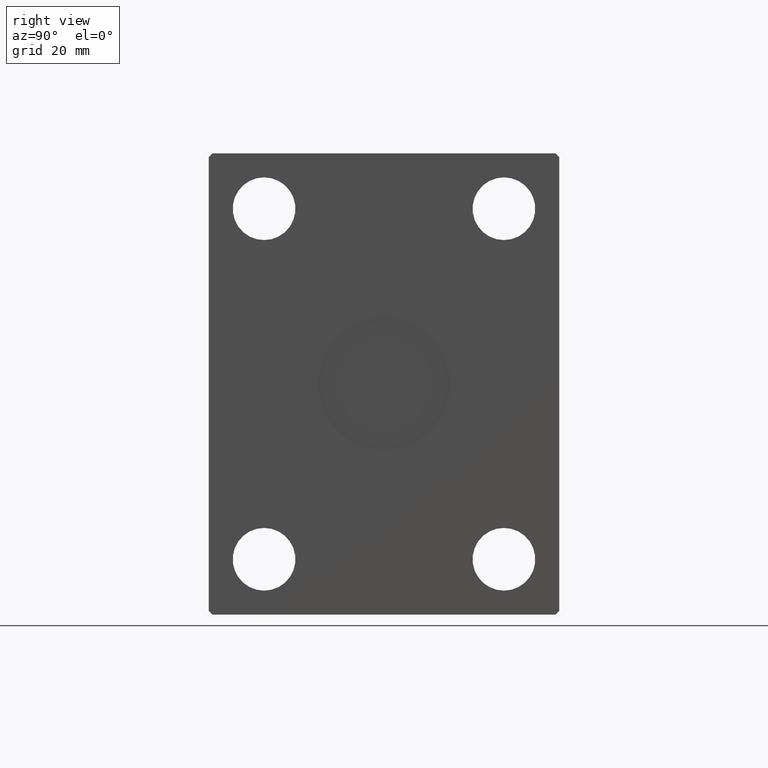
[diagram: clean part render]
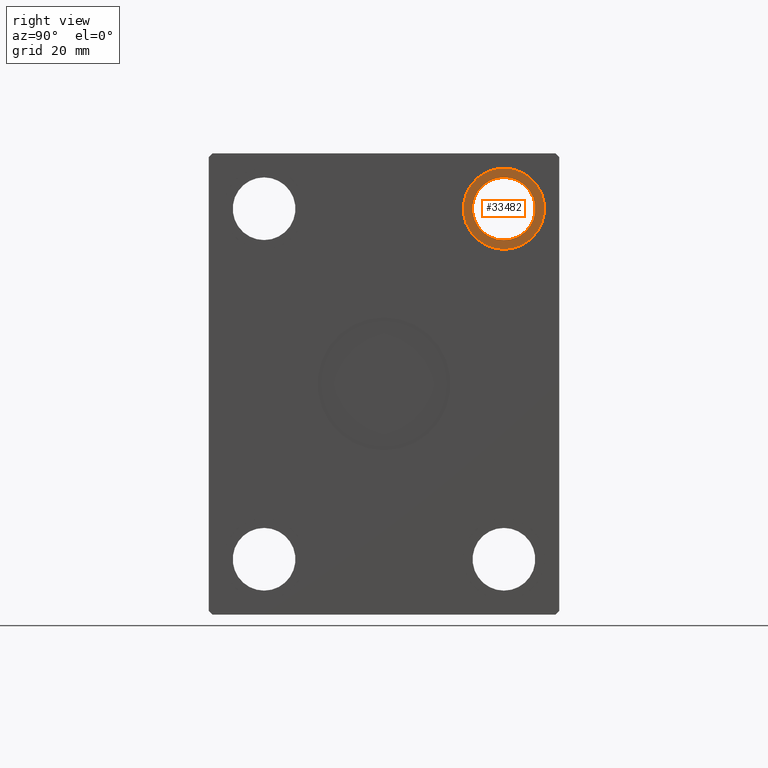
[diagram: same view with one face highlighted and labeled with its STEP entity id]
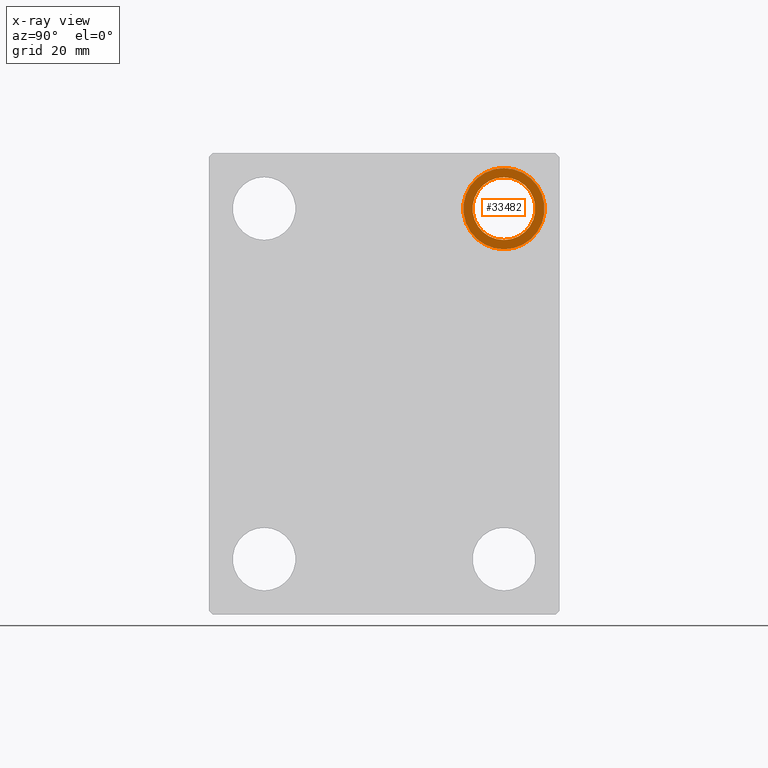
[diagram: x-ray of the same camera — body ghosted, the highlighted face saturated]
A machine part, right view. The second image highlights one B-rep face of the part: STEP entity #33482.
The next image is the same camera in x-ray: the body ghosted, the highlighted face saturated — about 0% of this face is hidden behind the body in this view.
In plain terms, the highlighted planar face has unit normal (-1, 0, 0).
Its self-contained STEP definition (entity closure, byte-faithful):
#425 = VERTEX_POINT ( 'NONE', #22678 ) ;
#1250 = DIRECTION ( 'NONE',  ( 0.000000000000000000, 0.000000000000000000, -1.000000000000000000 ) ) ;
#4197 = DIRECTION ( 'NONE',  ( 0.000000000000000000, 0.000000000000000000, 1.000000000000000000 ) ) ;
#4312 = AXIS2_PLACEMENT_3D ( 'NONE', #4464, #30681, #1250 ) ;
#4397 = ORIENTED_EDGE ( 'NONE', *, *, #27706, .T. ) ;
#4464 = CARTESIAN_POINT ( 'NONE',  ( 110.6699999999999875, 32.50000000000000000, 47.50000000000000000 ) ) ;
#5298 = CARTESIAN_POINT ( 'NONE',  ( 110.6699999999999875, 32.50000000000000000, 47.50000000000000000 ) ) ;
#6225 = FACE_BOUND ( 'NONE', #37805, .T. ) ;
#6899 = CIRCLE ( 'NONE', #18597, 8.499999999999992895 ) ;
#7347 = EDGE_LOOP ( 'NONE', ( #33670, #4397 ) ) ;
#8529 = DIRECTION ( 'NONE',  ( -1.000000000000000000, 0.000000000000000000, 0.000000000000000000 ) ) ;
#9861 = DIRECTION ( 'NONE',  ( -1.000000000000000000, 0.000000000000000000, 0.000000000000000000 ) ) ;
#12456 = PLANE ( 'NONE',  #14894 ) ;
#13237 = DIRECTION ( 'NONE',  ( -1.000000000000000000, 0.000000000000000000, 0.000000000000000000 ) ) ;
#13302 = CARTESIAN_POINT ( 'NONE',  ( 110.6699999999999875, 32.50000000000000000, 47.50000000000000000 ) ) ;
#14894 = AXIS2_PLACEMENT_3D ( 'NONE', #13302, #9861, #22978 ) ;
#15350 = EDGE_CURVE ( 'NONE', #31976, #32939, #17337, .T. ) ;
#15916 = CARTESIAN_POINT ( 'NONE',  ( 110.6699999999999875, 32.50000000000000000, 47.50000000000000000 ) ) ;
#17337 = CIRCLE ( 'NONE', #4312, 10.99999999999999645 ) ;
#17755 = VERTEX_POINT ( 'NONE', #25877 ) ;
#18597 = AXIS2_PLACEMENT_3D ( 'NONE', #26337, #13237, #4197 ) ;
#19936 = AXIS2_PLACEMENT_3D ( 'NONE', #5298, #8529, #25266 ) ;
#21650 = AXIS2_PLACEMENT_3D ( 'NONE', #15916, #22367, #25149 ) ;
#22367 = DIRECTION ( 'NONE',  ( 1.000000000000000000, -0.000000000000000000, -0.000000000000000000 ) ) ;
#22678 = CARTESIAN_POINT ( 'NONE',  ( 110.6699999999999875, 32.50000000000000000, 55.99999999999999289 ) ) ;
#22978 = DIRECTION ( 'NONE',  ( 0.000000000000000000, 0.000000000000000000, -1.000000000000000000 ) ) ;
#25067 = CIRCLE ( 'NONE', #21650, 10.99999999999999645 ) ;
#25149 = DIRECTION ( 'NONE',  ( 0.000000000000000000, 0.000000000000000000, -1.000000000000000000 ) ) ;
#25266 = DIRECTION ( 'NONE',  ( 0.000000000000000000, 0.000000000000000000, 1.000000000000000000 ) ) ;
#25877 = CARTESIAN_POINT ( 'NONE',  ( 110.6699999999999875, 32.50000000000000000, 39.00000000000000711 ) ) ;
#26337 = CARTESIAN_POINT ( 'NONE',  ( 110.6699999999999875, 32.50000000000000000, 47.50000000000000000 ) ) ;
#27706 = EDGE_CURVE ( 'NONE', #32939, #31976, #25067, .T. ) ;
#30391 = ORIENTED_EDGE ( 'NONE', *, *, #36157, .T. ) ;
#30681 = DIRECTION ( 'NONE',  ( 1.000000000000000000, -0.000000000000000000, -0.000000000000000000 ) ) ;
#31976 = VERTEX_POINT ( 'NONE', #34706 ) ;
#32939 = VERTEX_POINT ( 'NONE', #42209 ) ;
#32980 = CIRCLE ( 'NONE', #19936, 8.499999999999992895 ) ;
#33482 = ADVANCED_FACE ( 'NONE', ( #6225, #39305 ), #12456, .F. ) ;
#33670 = ORIENTED_EDGE ( 'NONE', *, *, #15350, .T. ) ;
#34000 = ORIENTED_EDGE ( 'NONE', *, *, #36680, .T. ) ;
#34706 = CARTESIAN_POINT ( 'NONE',  ( 110.6699999999999875, 32.50000000000000000, 36.50000000000000711 ) ) ;
#36157 = EDGE_CURVE ( 'NONE', #425, #17755, #32980, .T. ) ;
#36680 = EDGE_CURVE ( 'NONE', #17755, #425, #6899, .T. ) ;
#37805 = EDGE_LOOP ( 'NONE', ( #30391, #34000 ) ) ;
#39305 = FACE_OUTER_BOUND ( 'NONE', #7347, .T. ) ;
#42209 = CARTESIAN_POINT ( 'NONE',  ( 110.6699999999999875, 32.50000000000000000, 58.50000000000000000 ) ) ;